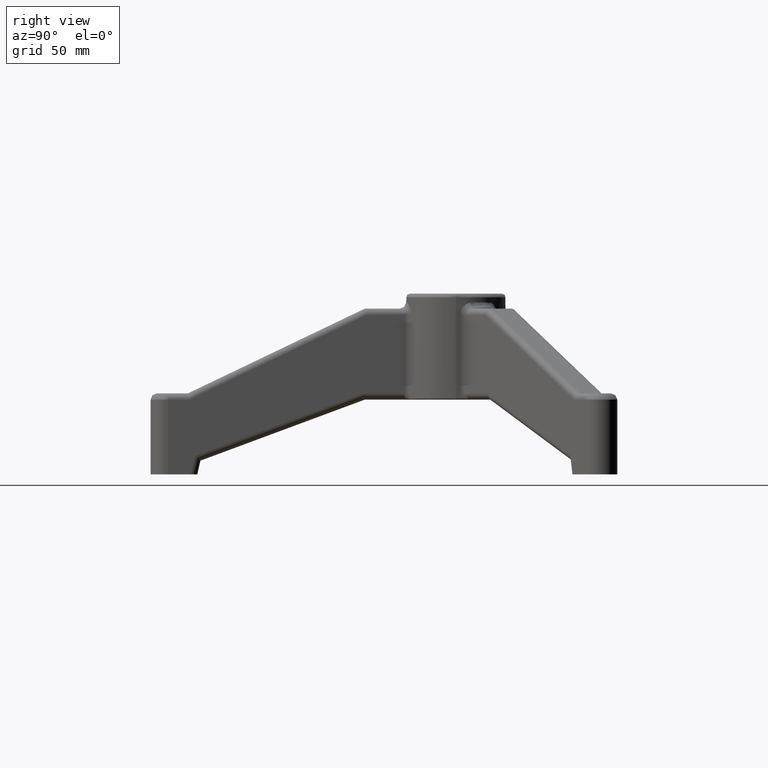
[diagram: clean part render]
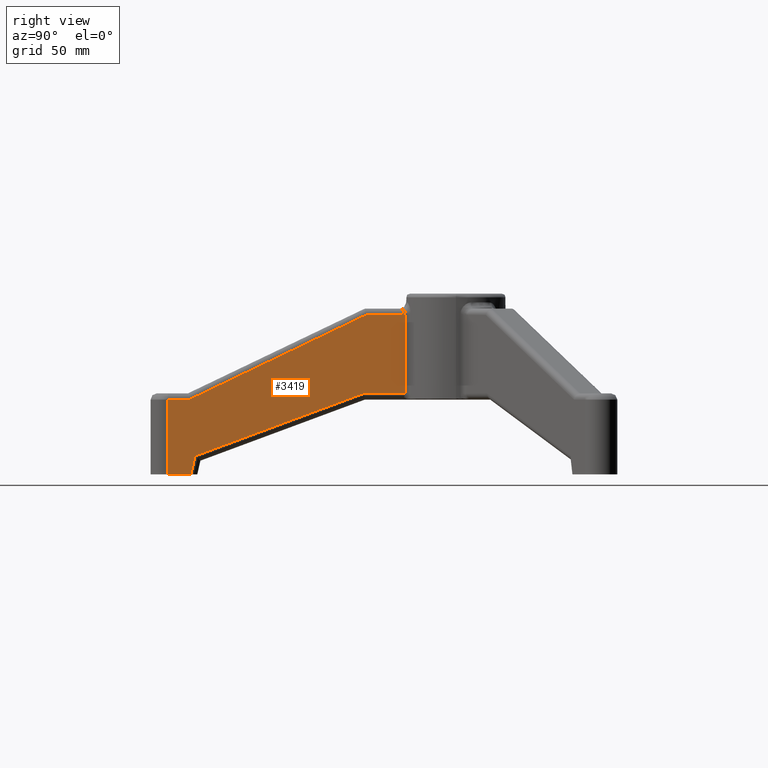
[diagram: same view with one face highlighted and labeled with its STEP entity id]
A machine part, right view. The second image highlights one B-rep face of the part: STEP entity #3419.
In plain terms, the highlighted planar face has unit normal (-1, -0, 0).
Its self-contained STEP definition (entity closure, byte-faithful):
#9=CARTESIAN_POINT('',(14.005722364171120,-213.864554913749940,-84.999999999999986));
#10=VERTEX_POINT('',#9);
#23=CARTESIAN_POINT('',(14.005722110065200,-71.864554913749942,-16.999999999999996));
#24=VERTEX_POINT('',#23);
#25=CARTESIAN_POINT('',(14.005722110065204,-71.864554913749942,-16.999999999999996));
#26=DIRECTION('',(1.613965E-009,-0.901919134345837,-0.431904937574063));
#27=VECTOR('',#26,157.442052832145210);
#28=LINE('',#25,#27);
#29=EDGE_CURVE('',#24,#10,#28,.T.);
#61=CARTESIAN_POINT('',(14.005722394824417,-230.994277215567220,-84.999999999999986));
#62=VERTEX_POINT('',#61);
#70=CARTESIAN_POINT('',(14.005722394824360,-230.994277215567220,-84.999999999999986));
#71=DIRECTION('',(-1.789478E-009,1.0,0.0));
#72=VECTOR('',#71,17.129722301817225);
#73=LINE('',#70,#72);
#74=EDGE_CURVE('',#62,#10,#73,.T.);
#217=CARTESIAN_POINT('',(14.005722394824360,-230.994277215567220,-145.0));
#218=VERTEX_POINT('',#217);
#226=CARTESIAN_POINT('',(14.005722394824360,-230.994277215567220,-84.999999999999986));
#227=DIRECTION('',(0.0,0.0,-1.0));
#228=VECTOR('',#227,60.000000000000014);
#229=LINE('',#226,#228);
#230=EDGE_CURVE('',#62,#218,#229,.T.);
#404=CARTESIAN_POINT('',(14.005722113704177,-73.898089607925627,-80.0));
#405=VERTEX_POINT('',#404);
#418=CARTESIAN_POINT('',(14.005722355960216,-209.276136397597330,-130.253971914347830));
#419=VERTEX_POINT('',#418);
#420=CARTESIAN_POINT('',(14.005722355960216,-209.276136397597330,-130.253971914347830));
#421=DIRECTION('',(-1.677620E-009,0.937491487981534,0.348008203871933));
#422=VECTOR('',#421,144.404561028225860);
#423=LINE('',#420,#422);
#424=EDGE_CURVE('',#419,#405,#423,.T.);
#455=CARTESIAN_POINT('',(14.005722361957439,-212.627506417063730,-145.0));
#456=VERTEX_POINT('',#455);
#457=CARTESIAN_POINT('',(14.005722361957439,-212.627506417063730,-145.0));
#458=DIRECTION('',(-3.965870E-010,0.221621103588968,0.975132855791460));
#459=VECTOR('',#458,15.122070800992200);
#460=LINE('',#457,#459);
#461=EDGE_CURVE('',#456,#419,#460,.T.);
#576=CARTESIAN_POINT('',(14.005722394824383,-230.994277215567190,-144.999999999999970));
#577=DIRECTION('',(-1.789478E-009,1.0,0.0));
#578=VECTOR('',#577,18.366770798503524);
#579=LINE('',#576,#578);
#580=EDGE_CURVE('',#218,#456,#579,.T.);
#3337=CARTESIAN_POINT('',(14.005722054457056,-40.789490434652919,-16.999999999999996));
#3338=VERTEX_POINT('',#3337);
#3339=CARTESIAN_POINT('',(14.005722110065211,-71.864554913749942,-16.999999999999996));
#3340=DIRECTION('',(-1.789478E-009,1.0,-1.143268E-016));
#3341=VECTOR('',#3340,31.075064479097023);
#3342=LINE('',#3339,#3341);
#3343=EDGE_CURVE('',#24,#3338,#3342,.T.);
#3374=CARTESIAN_POINT('',(14.005722054457056,-40.789490434652926,-80.0));
#3375=VERTEX_POINT('',#3374);
#3388=CARTESIAN_POINT('',(14.005722054457060,-40.789490434652926,-80.0));
#3389=DIRECTION('',(1.789478E-009,-1.0,0.0));
#3390=VECTOR('',#3389,33.108599173272701);
#3391=LINE('',#3388,#3390);
#3392=EDGE_CURVE('',#3375,#405,#3391,.T.);
#3398=CARTESIAN_POINT('',(14.005722394824360,-230.994277215567220,-11.999999999999986));
#3399=DIRECTION('',(-1.0,-1.789478E-009,1.095739E-025));
#3400=DIRECTION('',(-1.789478E-009,1.0,-6.123234E-017));
#3401=AXIS2_PLACEMENT_3D('',#3398,#3399,#3400);
#3402=PLANE('',#3401);
#3403=ORIENTED_EDGE('',*,*,#230,.T.);
#3404=ORIENTED_EDGE('',*,*,#580,.T.);
#3405=ORIENTED_EDGE('',*,*,#461,.T.);
#3406=ORIENTED_EDGE('',*,*,#424,.T.);
#3407=ORIENTED_EDGE('',*,*,#3392,.F.);
#3408=CARTESIAN_POINT('',(14.005722054457056,-40.789490434652919,-16.999999999999996));
#3409=DIRECTION('',(0.0,0.0,-1.0));
#3410=VECTOR('',#3409,63.0);
#3411=LINE('',#3408,#3410);
#3412=EDGE_CURVE('',#3338,#3375,#3411,.T.);
#3413=ORIENTED_EDGE('',*,*,#3412,.F.);
#3414=ORIENTED_EDGE('',*,*,#3343,.F.);
#3415=ORIENTED_EDGE('',*,*,#29,.T.);
#3416=ORIENTED_EDGE('',*,*,#74,.F.);
#3417=EDGE_LOOP('',(#3403,#3404,#3405,#3406,#3407,#3413,#3414,#3415,#3416));
#3418=FACE_OUTER_BOUND('',#3417,.T.);
#3419=ADVANCED_FACE('',(#3418),#3402,.F.);